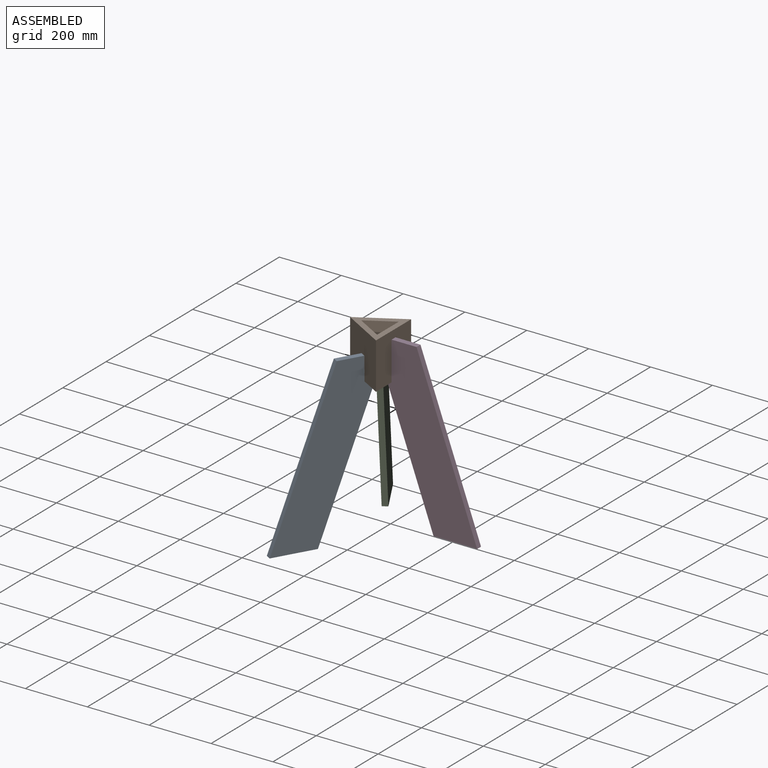
[diagram: assembled view]
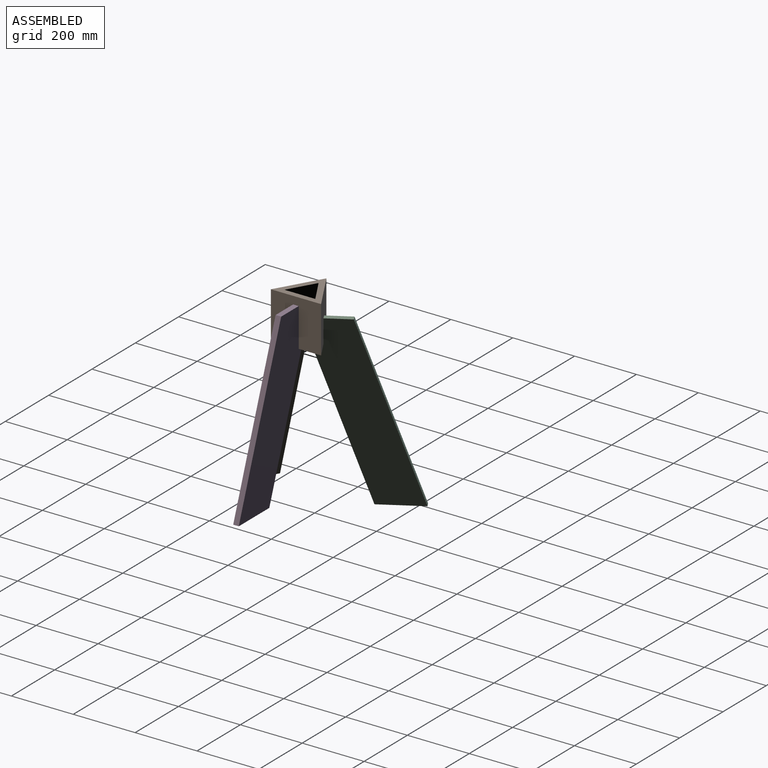
[diagram: assembled view, second angle]
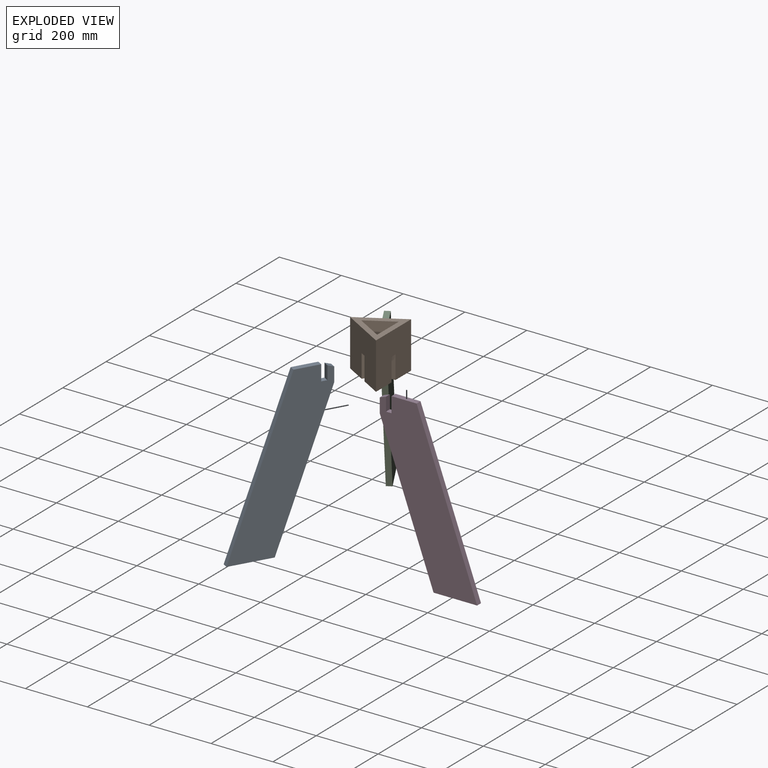
[diagram: exploded view]
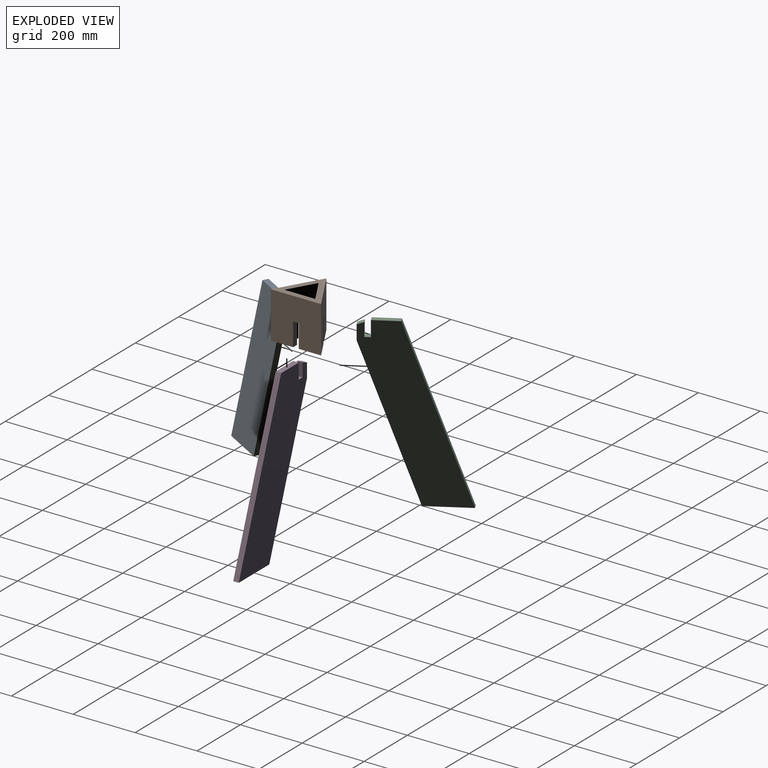
[diagram: exploded view, second angle]
ASSEMBLY  parts=4 mates=3
PART A: 11 faces, bbox 314.7x18x537.8 mm
  f0: plane 477.3x173.72mm, normal (-0.94,0,-0.34), area 9142.8mm2, adj f1,f8,f9,f10
  f1: plane 140.95x18mm, normal (0,0,-1), area 2537.2mm2, adj f0,f2,f9,f10
  f2: plane 537.8x195.74mm, normal (0.94,0,0.34), area 10301.7mm2, adj f1,f3,f9,f10
  f3: plane 80.93x18mm, normal (0,0,1), area 1456.8mm2, adj f2,f4,f9,f10
  f4: plane 50x18mm, normal (-1,0,0), area 900mm2, adj f3,f5,f9,f10
  f5: plane 18x18mm, normal (0,0,1), area 324mm2, adj f4,f6,f9,f10
  f6: plane 43.45x18mm, normal (1,0,0), area 782.1mm2, adj f5,f7,f9,f10
  f7: plane 20x18mm, normal (-0.34,0,0.94), area 383.1mm2, adj f6,f8,f9,f10
  f8: plane 46.67x18mm, normal (-1,0,0), area 840.1mm2, adj f0,f7,f9,f10
  f9: plane 537.8x314.68mm, normal (0,-1,0), area 74035.6mm2, adj f0,f1,f2,f3,f4,f5,f6,f7
  f10: plane 537.8x314.68mm, normal (0,1,0), area 74035.6mm2, adj f0,f1,f2,f3,f4,f5,f6,f7
PART B: 19 faces, bbox 162.2x150x140.4 mm
  f0: plane 72.04x71.35mm, normal (0,1,0), area 2025.6mm2, adj f3,f6,f7,f8,f10,f14
  f1: plane 72.33x62.57mm, normal (0,1,0), area 2046.5mm2, adj f4,f5,f6,f8,f11,f16
  f2: plane 71.84x62.36mm, normal (0,1,0), area 2016.3mm2, adj f3,f4,f5,f7,f13,f17
  f3: plane 150x140.44mm, normal (-0.87,0,0.5), area 22975.2mm2, adj f0,f2,f4,f6,f9,f13,f14,f15
  f4: plane 162.17x150mm, normal (0,0,-1), area 22975.2mm2, adj f1,f2,f3,f6,f9,f16,f17,f18
  f5: plane 150x100mm, normal (0,0,1), area 13650mm2, adj f1,f2,f7,f8,f9,f16,f17,f18
  f6: plane 150x140.44mm, normal (0.87,0,0.5), area 22975.2mm2, adj f0,f1,f3,f4,f9,f10,f11,f12
  f7: plane 150x86.6mm, normal (0.87,0,-0.5), area 13650mm2, adj f0,f2,f5,f8,f9,f13,f14,f15
  f8: plane 150x86.6mm, normal (-0.87,0,-0.5), area 13650mm2, adj f0,f1,f5,f7,f9,f10,f11,f12
  f9: plane 162.17x140.44mm, normal (0,-1,0), area 7057.5mm2, adj f3,f4,f5,f6,f7,f8
  f10: plane 75x15.7mm, normal (0.5,0,-0.87), area 1359.7mm2, adj f0,f6,f8,f12
  f11: plane 75x15.7mm, normal (-0.5,0,0.87), area 1359.7mm2, adj f1,f6,f8,f12
  f12: plane 24.7x24.65mm, normal (0,1,0), area 326.3mm2, adj f6,f8,f10,f11
  f13: plane 75x15.34mm, normal (0.5,0,0.87), area 1328.2mm2, adj f2,f3,f7,f15
  f14: plane 75x15.34mm, normal (-0.5,0,-0.87), area 1328.2mm2, adj f0,f3,f7,f15
  f15: plane 24.44x24.34mm, normal (0,1,0), area 318.8mm2, adj f3,f7,f13,f14
  f16: plane 75x18mm, normal (-1,0,0), area 1350mm2, adj f1,f4,f5,f18
  f17: plane 75x18mm, normal (1,0,0), area 1350mm2, adj f2,f4,f5,f18
  f18: plane 18x18mm, normal (0,1,0), area 324mm2, adj f4,f5,f16,f17
PART C: same geometry as A
PART D: same geometry as A
PLACE A rot(axis=(0,0,-1),120deg) t=(92.37,132.94,-329.32)mm
PLACE B rot(axis=(-0.58,-0.58,0.58),120deg) t=(204.74,295.57,133.48)mm
PLACE C rot(axis=(0,0,1),120deg) t=(76.78,449.2,-329.32)mm
PLACE D t=(358.46,304.57,-279.32)mm
MATE parallel A.f6 <-> B.f7  axis (-0.5,-0.87,0) through (161.43,270.57,158.48)mm
MATE planar D.f5 <-> B.f18  axis (0,0,1) through (213.74,295.57,208.48)mm
MATE parallel C.f6 <-> B.f8  axis (-0.5,0.87,0) through (161.43,320.57,158.48)mm
